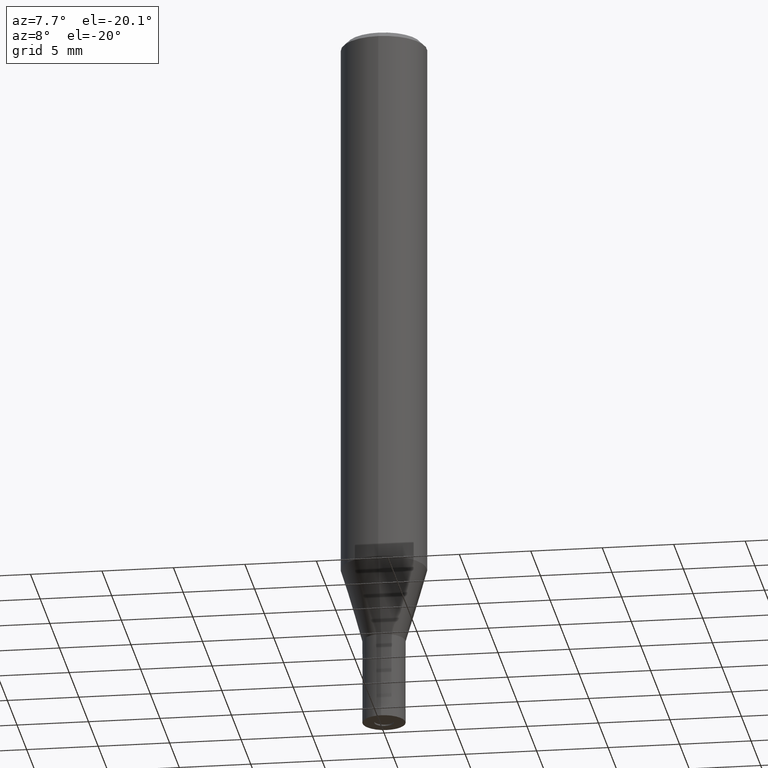
[diagram: clean part render]
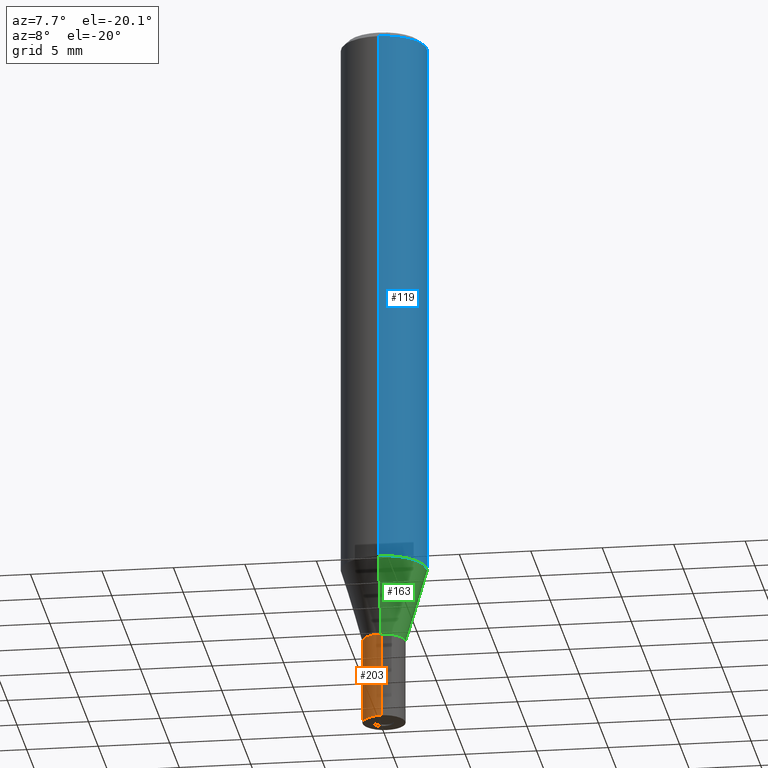
[diagram: same view with three faces highlighted in distinct colors, each labeled with its STEP entity id]
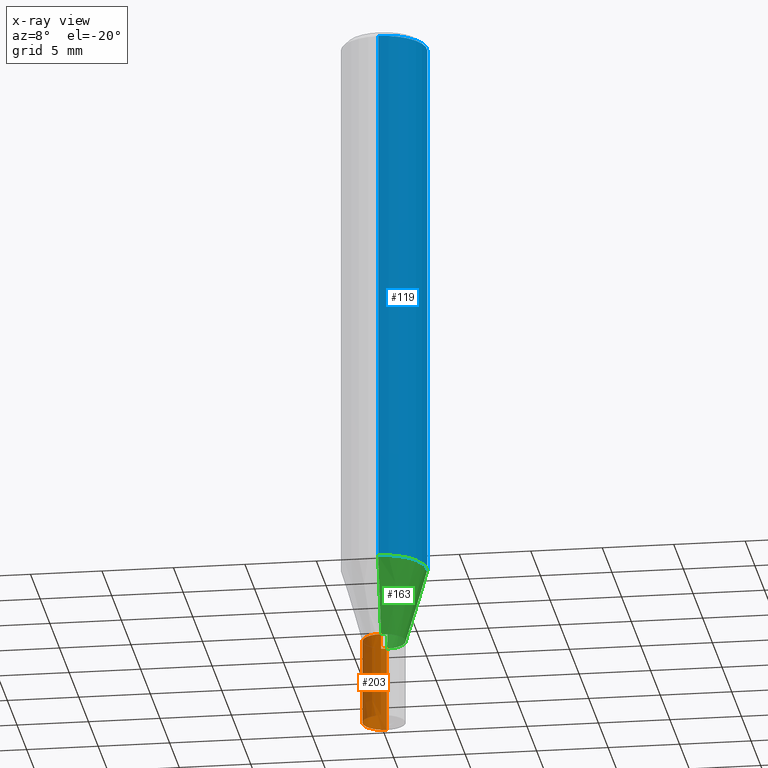
[diagram: x-ray of the same camera — body ghosted, the three highlighted faces saturated]
A machine part, auxiliary view with three faces highlighted in distinct colors.
The next image is the same camera in x-ray (body ghosted, the three faces saturated) — at least one of them is partly hidden behind the body in this view.
Their STEP definitions:

[orange] entity #203 — the highlighted conical surface has half-angle 0.001 deg.
#137=VERTEX_POINT('',#314);
#145=VERTEX_POINT('',#323);
#147=EDGE_CURVE('',#137,#189,#325,.T.);
#167=EDGE_CURVE('',#197,#137,#347,.T.);
#189=VERTEX_POINT('',#370);
#191=EDGE_CURVE('',#189,#145,#372,.T.);
#197=VERTEX_POINT('',#378);
#203=ADVANCED_FACE('',(#384),#385,.T.);
#233=EDGE_CURVE('',#197,#145,#421,.T.);
#314=CARTESIAN_POINT('',(1.83678707009818E-016,-1.4999,-44.0));
#323=CARTESIAN_POINT('',(0.0,1.5,-50.0));
#325=CIRCLE('',#519,1.4999);
#347=LINE('',#547,#548);
#370=CARTESIAN_POINT('',(0.0,1.4999,-44.0));
#372=LINE('',#582,#583);
#378=CARTESIAN_POINT('',(1.83690953073357E-016,-1.5,-50.0));
#384=FACE_OUTER_BOUND('',#600,.T.);
#385=CONICAL_SURFACE('',#601,1.49995,1.66666666651216E-005);
#421=CIRCLE('',#643,1.5);
#519=AXIS2_PLACEMENT_3D('',#750,#751,#752);
#547=CARTESIAN_POINT('',(1.83684830041587E-016,-1.49995,-47.0));
#548=VECTOR('',#783,1.0);
#582=CARTESIAN_POINT('',(-1.83684830041587E-016,1.49995,-47.0));
#583=VECTOR('',#801,1.0);
#600=EDGE_LOOP('',(#808,#809,#810,#811));
#601=AXIS2_PLACEMENT_3D('',#812,#813,#814);
#643=AXIS2_PLACEMENT_3D('',#859,#860,#861);
#750=CARTESIAN_POINT('',(0.0,0.0,-44.0));
#751=DIRECTION('',(0.0,0.0,-1.0));
#752=DIRECTION('',(0.0,1.0,0.0));
#783=DIRECTION('',(-2.04101058942026E-021,1.666666666435E-005,0.999999999861111));
#801=DIRECTION('',(-2.04101058942026E-021,1.666666666435E-005,-0.999999999861111));
#808=ORIENTED_EDGE('',*,*,#191,.T.);
#809=ORIENTED_EDGE('',*,*,#233,.F.);
#810=ORIENTED_EDGE('',*,*,#167,.T.);
#811=ORIENTED_EDGE('',*,*,#147,.T.);
#812=CARTESIAN_POINT('',(0.0,0.0,-47.0));
#813=DIRECTION('',(0.0,-0.0,-1.0));
#814=DIRECTION('',(0.0,1.0,0.0));
#859=CARTESIAN_POINT('',(0.0,0.0,-50.0));
#860=DIRECTION('',(0.0,0.0,-1.0));
#861=DIRECTION('',(0.0,1.0,0.0));

[blue] entity #119 — the highlighted cylindrical surface (partial cylindrical patch) has radius 3 mm, axis along (-0, -0, 1).
#117=VERTEX_POINT('',#290);
#119=ADVANCED_FACE('',(#292),#293,.T.);
#131=VERTEX_POINT('',#308);
#169=EDGE_CURVE('',#131,#211,#349,.T.);
#173=EDGE_CURVE('',#131,#117,#353,.T.);
#183=EDGE_CURVE('',#195,#211,#363,.T.);
#195=VERTEX_POINT('',#376);
#211=VERTEX_POINT('',#393);
#247=EDGE_CURVE('',#117,#195,#437,.T.);
#290=CARTESIAN_POINT('',(0.0,3.0,-38.769));
#292=FACE_OUTER_BOUND('',#480,.T.);
#293=CYLINDRICAL_SURFACE('',#481,3.0);
#308=CARTESIAN_POINT('',(0.0,3.0,-0.399999999999999));
#349=CIRCLE('',#551,3.0);
#353=LINE('',#556,#557);
#363=LINE('',#569,#570);
#376=CARTESIAN_POINT('',(3.67381906146713E-016,-3.0,-38.769));
#393=CARTESIAN_POINT('',(3.67381906146713E-016,-3.0,-0.399999999999999));
#437=CIRCLE('',#663,3.0);
#480=EDGE_LOOP('',(#704,#705,#706,#707));
#481=AXIS2_PLACEMENT_3D('',#708,#709,#710);
#551=AXIS2_PLACEMENT_3D('',#784,#785,#786);
#556=CARTESIAN_POINT('',(-3.67381906146713E-016,3.0,-19.5845));
#557=VECTOR('',#787,1.0);
#569=CARTESIAN_POINT('',(3.67381906146713E-016,-3.0,-19.5845));
#570=VECTOR('',#791,1.0);
#663=AXIS2_PLACEMENT_3D('',#880,#881,#882);
#704=ORIENTED_EDGE('',*,*,#173,.F.);
#705=ORIENTED_EDGE('',*,*,#169,.T.);
#706=ORIENTED_EDGE('',*,*,#183,.F.);
#707=ORIENTED_EDGE('',*,*,#247,.F.);
#708=CARTESIAN_POINT('',(0.0,0.0,-19.5845));
#709=DIRECTION('',(-0.0,-0.0,1.0));
#710=DIRECTION('',(0.0,1.0,0.0));
#784=CARTESIAN_POINT('',(0.0,0.0,-0.399999999999999));
#785=DIRECTION('',(0.0,0.0,-1.0));
#786=DIRECTION('',(0.0,1.0,0.0));
#787=DIRECTION('',(0.0,0.0,-1.0));
#791=DIRECTION('',(-0.0,-0.0,1.0));
#880=CARTESIAN_POINT('',(0.0,0.0,-38.769));
#881=DIRECTION('',(0.0,0.0,-1.0));
#882=DIRECTION('',(0.0,1.0,0.0));

[green] entity #163 — the highlighted conical surface has half-angle 16 deg.
#121=EDGE_CURVE('',#235,#151,#295,.T.);
#129=EDGE_CURVE('',#179,#171,#306,.T.);
#151=VERTEX_POINT('',#329);
#163=ADVANCED_FACE('',(#342),#343,.T.);
#171=VERTEX_POINT('',#351);
#179=VERTEX_POINT('',#359);
#199=EDGE_CURVE('',#171,#151,#380,.T.);
#217=EDGE_CURVE('',#235,#179,#402,.T.);
#235=VERTEX_POINT('',#423);
#295=CIRCLE('',#484,2.99995);
#306=CIRCLE('',#497,1.49995);
#329=CARTESIAN_POINT('',(3.67375783114944E-016,-2.99995,-38.769));
#342=FACE_OUTER_BOUND('',#540,.T.);
#343=CONICAL_SURFACE('',#541,2.24995,0.279258842899557);
#351=CARTESIAN_POINT('',(1.83684830041587E-016,-1.49995,-44.0));
#359=CARTESIAN_POINT('',(0.0,1.49995,-44.0));
#380=LINE('',#594,#595);
#402=LINE('',#621,#622);
#423=CARTESIAN_POINT('',(0.0,2.99995,-38.769));
#484=AXIS2_PLACEMENT_3D('',#711,#712,#713);
#497=AXIS2_PLACEMENT_3D('',#733,#734,#735);
#540=EDGE_LOOP('',(#773,#774,#775,#776));
#541=AXIS2_PLACEMENT_3D('',#777,#778,#779);
#594=CARTESIAN_POINT('',(2.75530306578266E-016,-2.24995,-41.3845));
#595=VECTOR('',#803,1.0);
#621=CARTESIAN_POINT('',(-2.75530306578266E-016,2.24995,-41.3845));
#622=VECTOR('',#835,1.0);
#711=CARTESIAN_POINT('',(0.0,0.0,-38.769));
#712=DIRECTION('',(0.0,0.0,-1.0));
#713=DIRECTION('',(0.0,1.0,0.0));
#733=CARTESIAN_POINT('',(0.0,0.0,-44.0));
#734=DIRECTION('',(0.0,0.0,-1.0));
#735=DIRECTION('',(0.0,1.0,0.0));
#773=ORIENTED_EDGE('',*,*,#217,.F.);
#774=ORIENTED_EDGE('',*,*,#121,.T.);
#775=ORIENTED_EDGE('',*,*,#199,.F.);
#776=ORIENTED_EDGE('',*,*,#129,.F.);
#777=CARTESIAN_POINT('',(0.0,0.0,-41.3845));
#778=DIRECTION('',(-0.0,-0.0,1.0));
#779=DIRECTION('',(0.0,1.0,0.0));
#803=DIRECTION('',(3.37554511665357E-017,-0.275643279664313,0.961259997282682));
#835=DIRECTION('',(3.37554511665356E-017,-0.275643279664313,-0.961259997282682));